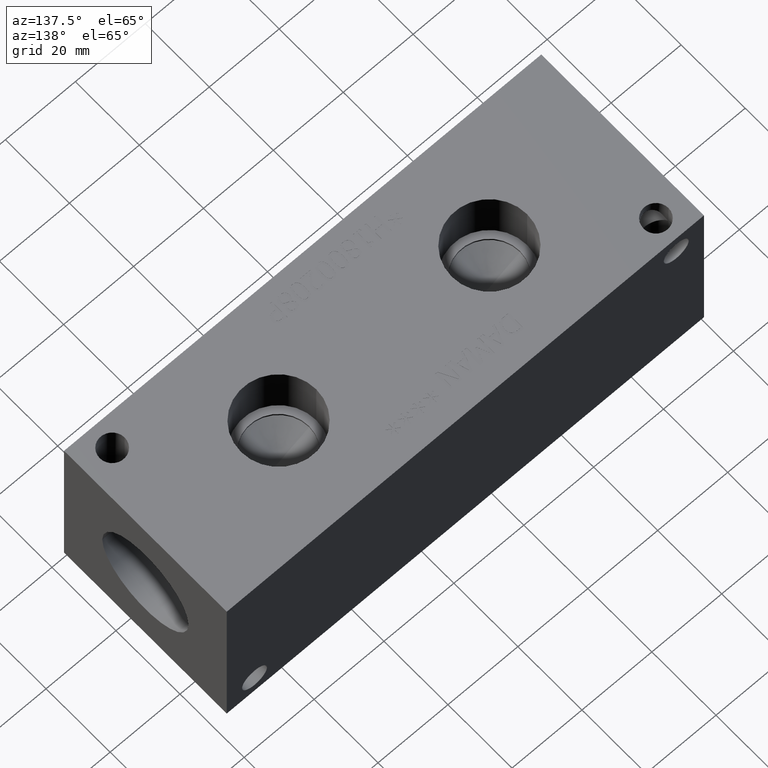
[diagram: clean part render]
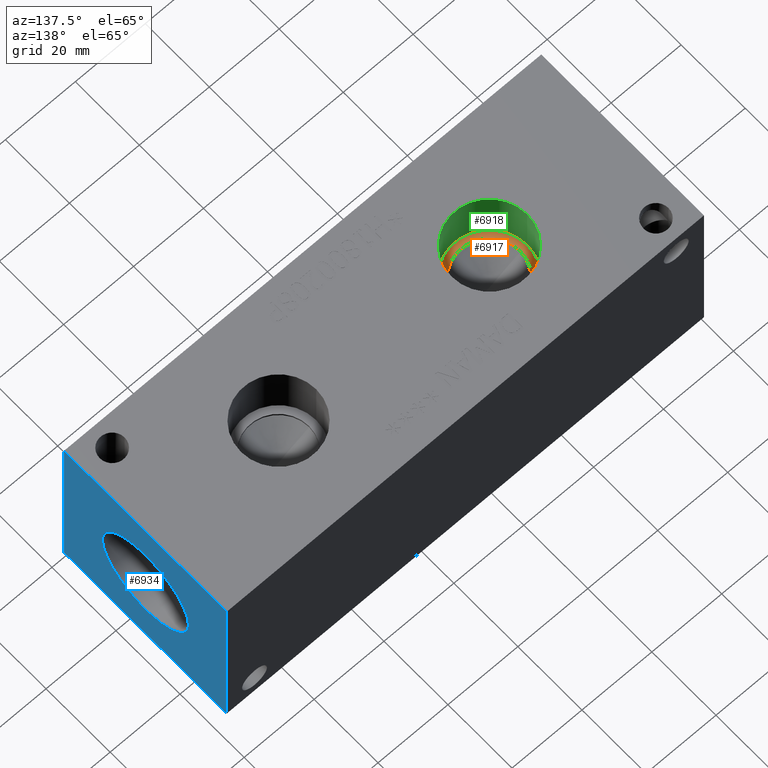
[diagram: same view with three faces highlighted in distinct colors, each labeled with its STEP entity id]
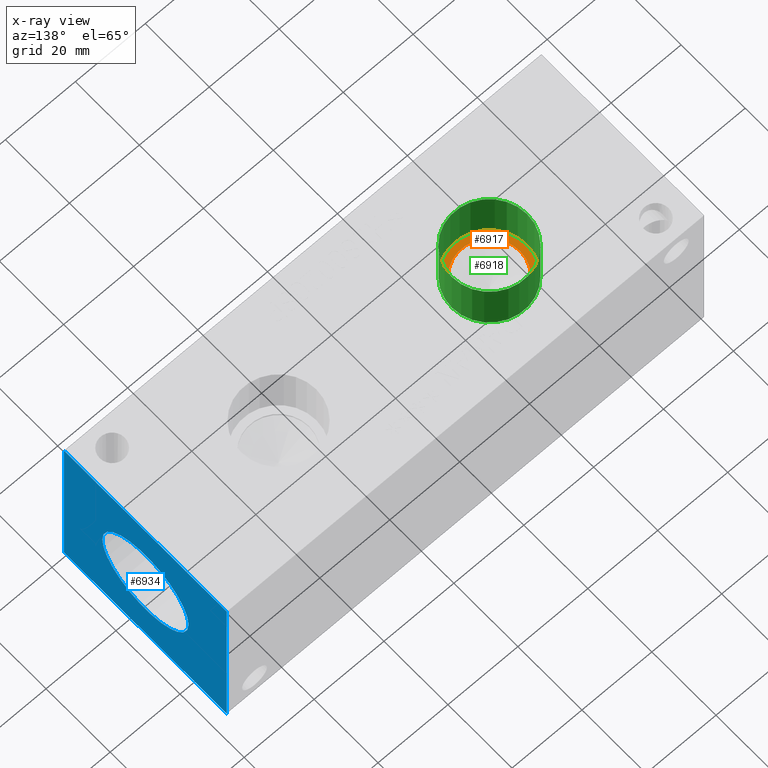
[diagram: x-ray of the same camera — body ghosted, the three highlighted faces saturated]
A machine part, auxiliary view with three faces highlighted in distinct colors.
The next image is the same camera in x-ray (body ghosted, the three faces saturated) — at least one of them is partly hidden behind the body in this view.
Their STEP definitions:

[orange] entity #6917 — the highlighted planar face has unit normal (0, 0, 1).
#80=CIRCLE('',#7221,10.795);
#81=CIRCLE('',#7222,10.795);
#82=CIRCLE('',#7223,8.7376);
#138=FACE_BOUND('',#1093,.T.);
#365=PLANE('',#7220);
#705=FACE_OUTER_BOUND('',#1092,.T.);
#1092=EDGE_LOOP('',(#6075,#6076));
#1093=EDGE_LOOP('',(#6077));
#3306=VERTEX_POINT('',#11745);
#3307=VERTEX_POINT('',#11746);
#3308=VERTEX_POINT('',#11749);
#4243=EDGE_CURVE('',#3306,#3307,#80,.T.);
#4244=EDGE_CURVE('',#3307,#3306,#81,.T.);
#4245=EDGE_CURVE('',#3308,#3308,#82,.T.);
#6075=ORIENTED_EDGE('',*,*,#4243,.T.);
#6076=ORIENTED_EDGE('',*,*,#4244,.T.);
#6077=ORIENTED_EDGE('',*,*,#4245,.F.);
#6917=ADVANCED_FACE('',(#705,#138),#365,.T.);
#7220=AXIS2_PLACEMENT_3D('',#11744,#8465,#8466);
#7221=AXIS2_PLACEMENT_3D('',#11747,#8467,#8468);
#7222=AXIS2_PLACEMENT_3D('',#11748,#8469,#8470);
#7223=AXIS2_PLACEMENT_3D('',#11750,#8471,#8472);
#8465=DIRECTION('center_axis',(0.,0.,1.));
#8466=DIRECTION('ref_axis',(1.,0.,0.));
#8467=DIRECTION('center_axis',(0.,0.,1.));
#8468=DIRECTION('ref_axis',(1.,0.,0.));
#8469=DIRECTION('center_axis',(0.,0.,1.));
#8470=DIRECTION('ref_axis',(1.,0.,0.));
#8471=DIRECTION('center_axis',(0.,0.,1.));
#8472=DIRECTION('ref_axis',(1.,0.,0.));
#11744=CARTESIAN_POINT('Origin',(38.1,25.4,35.433));
#11745=CARTESIAN_POINT('',(48.895,25.4,35.433));
#11746=CARTESIAN_POINT('',(27.305,25.4,35.433));
#11747=CARTESIAN_POINT('Origin',(38.1,25.4,35.433));
#11748=CARTESIAN_POINT('Origin',(38.1,25.4,35.433));
#11749=CARTESIAN_POINT('',(29.3624,25.4,35.433));
#11750=CARTESIAN_POINT('Origin',(38.1,25.4,35.433));

[blue] entity #6934 — the highlighted planar face has unit normal (1, 0, 0).
#93=CIRCLE('',#7243,13.462);
#94=CIRCLE('',#7244,13.462);
#145=FACE_BOUND('',#1117,.T.);
#371=PLANE('',#7259);
#722=FACE_OUTER_BOUND('',#1116,.T.);
#1116=EDGE_LOOP('',(#6155,#6156,#6157,#6158));
#1117=EDGE_LOOP('',(#6159,#6160));
#1396=LINE('',#10720,#2079);
#1806=LINE('',#11826,#2489);
#1807=LINE('',#11829,#2490);
#1808=LINE('',#11830,#2491);
#2079=VECTOR('',#7672,10.);
#2489=VECTOR('',#8558,10.);
#2490=VECTOR('',#8561,10.);
#2491=VECTOR('',#8562,10.);
#3002=VERTEX_POINT('',#10717);
#3003=VERTEX_POINT('',#10719);
#3321=VERTEX_POINT('',#11788);
#3322=VERTEX_POINT('',#11789);
#3333=VERTEX_POINT('',#11824);
#3334=VERTEX_POINT('',#11828);
#3792=EDGE_CURVE('',#3002,#3003,#1396,.T.);
#4262=EDGE_CURVE('',#3321,#3322,#93,.T.);
#4263=EDGE_CURVE('',#3322,#3321,#94,.T.);
#4280=EDGE_CURVE('',#3333,#3003,#1806,.T.);
#4281=EDGE_CURVE('',#3334,#3333,#1807,.T.);
#4282=EDGE_CURVE('',#3334,#3002,#1808,.T.);
#6155=ORIENTED_EDGE('',*,*,#4281,.T.);
#6156=ORIENTED_EDGE('',*,*,#4280,.T.);
#6157=ORIENTED_EDGE('',*,*,#3792,.F.);
#6158=ORIENTED_EDGE('',*,*,#4282,.F.);
#6159=ORIENTED_EDGE('',*,*,#4262,.T.);
#6160=ORIENTED_EDGE('',*,*,#4263,.T.);
#6934=ADVANCED_FACE('',(#722,#145),#371,.T.);
#7243=AXIS2_PLACEMENT_3D('',#11790,#8517,#8518);
#7244=AXIS2_PLACEMENT_3D('',#11791,#8519,#8520);
#7259=AXIS2_PLACEMENT_3D('',#11827,#8559,#8560);
#7672=DIRECTION('',(0.,1.,0.));
#8517=DIRECTION('center_axis',(-1.,0.,0.));
#8518=DIRECTION('ref_axis',(0.,1.,0.));
#8519=DIRECTION('center_axis',(-1.,0.,0.));
#8520=DIRECTION('ref_axis',(0.,1.,0.));
#8558=DIRECTION('',(0.,0.,1.));
#8559=DIRECTION('center_axis',(1.,0.,0.));
#8560=DIRECTION('ref_axis',(0.,1.,0.));
#8561=DIRECTION('',(0.,1.,0.));
#8562=DIRECTION('',(0.,0.,1.));
#10717=CARTESIAN_POINT('',(136.525,0.,50.8));
#10719=CARTESIAN_POINT('',(136.525,50.8,50.8));
#10720=CARTESIAN_POINT('',(136.525,0.,50.8));
#11788=CARTESIAN_POINT('',(136.525,38.862,25.4));
#11789=CARTESIAN_POINT('',(136.525,11.938,25.4));
#11790=CARTESIAN_POINT('Origin',(136.525,25.4,25.4));
#11791=CARTESIAN_POINT('Origin',(136.525,25.4,25.4));
#11824=CARTESIAN_POINT('',(136.525,50.8,0.));
#11826=CARTESIAN_POINT('',(136.525,50.8,0.));
#11827=CARTESIAN_POINT('Origin',(136.525,0.,0.));
#11828=CARTESIAN_POINT('',(136.525,0.,0.));
#11829=CARTESIAN_POINT('',(136.525,0.,0.));
#11830=CARTESIAN_POINT('',(136.525,0.,0.));

[green] entity #6918 — the highlighted cylindrical surface (bore or boss wall) has radius 10.795 mm, axis along (0, 0, 1).
#34=CYLINDRICAL_SURFACE('',#7224,10.795);
#50=CIRCLE('',#7023,10.795);
#51=CIRCLE('',#7024,10.795);
#80=CIRCLE('',#7221,10.795);
#81=CIRCLE('',#7222,10.795);
#706=FACE_OUTER_BOUND('',#1094,.T.);
#1094=EDGE_LOOP('',(#6078,#6079,#6080,#6081,#6082,#6083));
#1791=LINE('',#11752,#2474);
#2474=VECTOR('',#8475,10.795);
#3007=VERTEX_POINT('',#10728);
#3008=VERTEX_POINT('',#10729);
#3306=VERTEX_POINT('',#11745);
#3307=VERTEX_POINT('',#11746);
#3797=EDGE_CURVE('',#3007,#3008,#50,.T.);
#3798=EDGE_CURVE('',#3008,#3007,#51,.T.);
#4243=EDGE_CURVE('',#3306,#3307,#80,.T.);
#4244=EDGE_CURVE('',#3307,#3306,#81,.T.);
#4246=EDGE_CURVE('',#3008,#3307,#1791,.T.);
#6078=ORIENTED_EDGE('',*,*,#3797,.F.);
#6079=ORIENTED_EDGE('',*,*,#3798,.F.);
#6080=ORIENTED_EDGE('',*,*,#4246,.T.);
#6081=ORIENTED_EDGE('',*,*,#4243,.F.);
#6082=ORIENTED_EDGE('',*,*,#4244,.F.);
#6083=ORIENTED_EDGE('',*,*,#4246,.F.);
#6918=ADVANCED_FACE('',(#706),#34,.F.);
#7023=AXIS2_PLACEMENT_3D('',#10730,#7679,#7680);
#7024=AXIS2_PLACEMENT_3D('',#10731,#7681,#7682);
#7221=AXIS2_PLACEMENT_3D('',#11747,#8467,#8468);
#7222=AXIS2_PLACEMENT_3D('',#11748,#8469,#8470);
#7224=AXIS2_PLACEMENT_3D('',#11751,#8473,#8474);
#7679=DIRECTION('center_axis',(0.,0.,-1.));
#7680=DIRECTION('ref_axis',(1.,0.,0.));
#7681=DIRECTION('center_axis',(0.,0.,-1.));
#7682=DIRECTION('ref_axis',(1.,0.,0.));
#8467=DIRECTION('center_axis',(0.,0.,1.));
#8468=DIRECTION('ref_axis',(1.,0.,0.));
#8469=DIRECTION('center_axis',(0.,0.,1.));
#8470=DIRECTION('ref_axis',(1.,0.,0.));
#8473=DIRECTION('center_axis',(0.,0.,1.));
#8474=DIRECTION('ref_axis',(1.,0.,0.));
#8475=DIRECTION('',(0.,0.,-1.));
#10728=CARTESIAN_POINT('',(48.895,25.4,50.8));
#10729=CARTESIAN_POINT('',(27.305,25.4,50.8));
#10730=CARTESIAN_POINT('Origin',(38.1,25.4,50.8));
#10731=CARTESIAN_POINT('Origin',(38.1,25.4,50.8));
#11745=CARTESIAN_POINT('',(48.895,25.4,35.433));
#11746=CARTESIAN_POINT('',(27.305,25.4,35.433));
#11747=CARTESIAN_POINT('Origin',(38.1,25.4,35.433));
#11748=CARTESIAN_POINT('Origin',(38.1,25.4,35.433));
#11751=CARTESIAN_POINT('Origin',(38.1,25.4,43.1165));
#11752=CARTESIAN_POINT('',(27.305,25.4,43.1165));